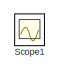
[diagram: root canvas - part 1/2, top left region]
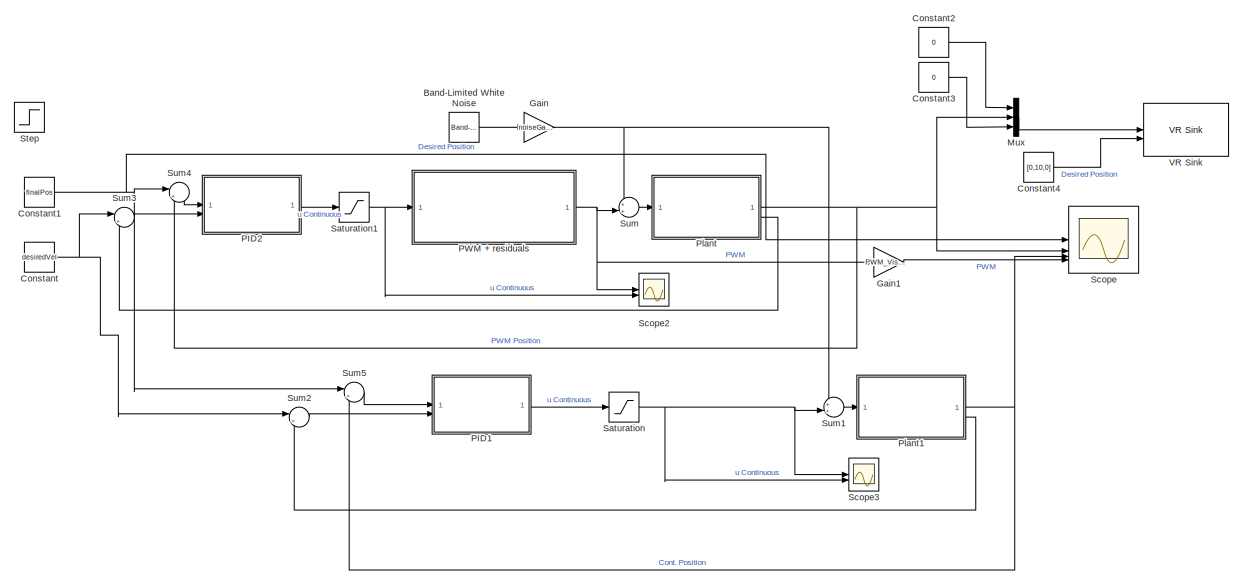
[diagram: root canvas - part 2/2, right side, full height]
MODEL slx_3f6a1cfa5770
KIND model
CONFIG AbsTol = auto
CONFIG EnableMultiTasking = off
CONFIG FixedStep = auto
CONFIG MaxStep = auto
CONFIG MinStep = auto
CONFIG RelTol = 1e-3
CONFIG SampleTimeConstraint = Unconstrained
CONFIG SolverName = VariableStepAuto
CONFIG StartTime = 0.0
CONFIG StopTime = 10
BLOCK [Reference] Band-Limited White Noise  REF=simulink/Sources/Band-Limited
White Noise
  SourceBlock = simulink/Sources/Band-Limited\nWhite Noise
  SourceType = Band-Limited White Noise.
BLOCK [Constant] Constant
  Value = desiredVel
BLOCK [Constant] Constant1
  Value = finalPos
BLOCK [Constant] Constant2
  Value = 0
BLOCK [Constant] Constant3
  Value = 0
BLOCK [Constant] Constant4
  Value = [0,10,0]
BLOCK [Gain] Gain
  Gain = noiseGain
BLOCK [Gain] Gain1
  Gain = PWM_Visualize_Gain
BLOCK [Mux] Mux
  DisplayOption = bar
  Inputs = 3
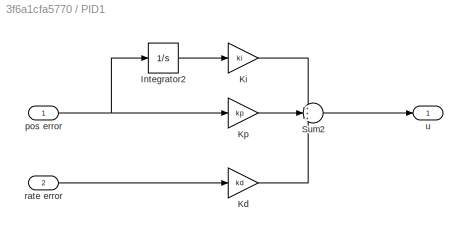
BLOCK [SubSystem] PID1
BLOCK [Integrator] PID1/Integrator2
BLOCK [Gain] PID1/Kd
  Gain = kd
BLOCK [Gain] PID1/Ki
  Gain = ki
BLOCK [Gain] PID1/Kp
  Gain = kp
BLOCK [Sum] PID1/Sum2
  Inputs = +++
BLOCK [Inport] PID1/pos error
BLOCK [Inport] PID1/rate error
  Port = 2
BLOCK [Outport] PID1/u
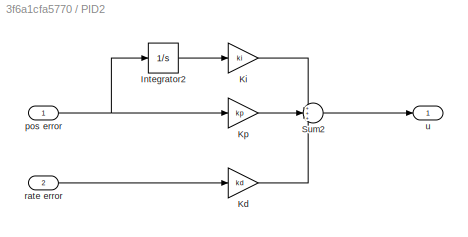
BLOCK [SubSystem] PID2
BLOCK [Integrator] PID2/Integrator2
BLOCK [Gain] PID2/Kd
  Gain = kd
BLOCK [Gain] PID2/Ki
  Gain = ki
BLOCK [Gain] PID2/Kp
  Gain = kp
BLOCK [Sum] PID2/Sum2
  Inputs = +++
BLOCK [Inport] PID2/pos error
BLOCK [Inport] PID2/rate error
  Port = 2
BLOCK [Outport] PID2/u
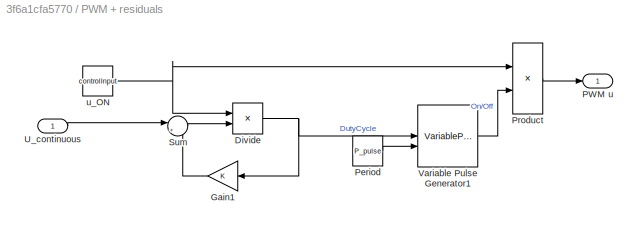
BLOCK [SubSystem] PWM + residuals
BLOCK [Product] PWM + residuals/Divide
  Inputs = /*
BLOCK [Gain] PWM + residuals/Gain1
  NameLocation = top
BLOCK [Outport] PWM + residuals/PWM u
BLOCK [Constant] PWM + residuals/Period
  Value = P_pulse
BLOCK [Product] PWM + residuals/Product
BLOCK [Sum] PWM + residuals/Sum
  Inputs = |++
BLOCK [Inport] PWM + residuals/U_continuous
BLOCK [VariablePulseGenerator] PWM + residuals/Variable Pulse Generator1
  AllowZeroPulseWidth = on
  SampleTime = 0.1
BLOCK [Constant] PWM + residuals/u_ON
  Value = controlInput
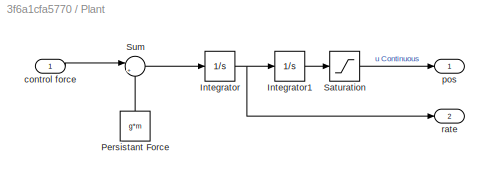
BLOCK [SubSystem] Plant
BLOCK [Integrator] Plant/Integrator
BLOCK [Integrator] Plant/Integrator1
  InitialCondition = initialPos
BLOCK [Constant] Plant/Persistant Force
  NameLocation = right
  Value = g*m
BLOCK [Saturate] Plant/Saturation
  LowerLimit = 0
  UpperLimit = 1000
BLOCK [Sum] Plant/Sum
  Inputs = |++
BLOCK [Inport] Plant/control force
BLOCK [Outport] Plant/pos
BLOCK [Outport] Plant/rate
  Port = 2
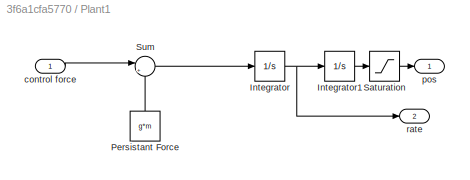
BLOCK [SubSystem] Plant1
BLOCK [Integrator] Plant1/Integrator
BLOCK [Integrator] Plant1/Integrator1
  InitialCondition = initialPos
BLOCK [Constant] Plant1/Persistant Force
  NameLocation = right
  Value = g*m
BLOCK [Saturate] Plant1/Saturation
  LowerLimit = 0
  UpperLimit = 1000
BLOCK [Sum] Plant1/Sum
  Inputs = |++
BLOCK [Inport] Plant1/control force
BLOCK [Outport] Plant1/pos
BLOCK [Outport] Plant1/rate
  Port = 2
BLOCK [Saturate] Saturation
  LowerLimit = 0
  UpperLimit = 1000
BLOCK [Saturate] Saturation1
  LowerLimit = 0
  UpperLimit = 1000
BLOCK [Scope] Scope
  Floating = off
  NumInputPorts = 4
  ScopeSpecificationString = Simulink.scopes.TimeScopeBlockCfg('CurrentConfiguration', extmgr.ConfigurationSet(extmgr.Configuration('Core','General UI',true),extmgr.Configuration('Core','Source UI',true),extmgr.Configuration('Sources','WiredSimulink',true,'DataLoggingVariableName','ScopeData1'),extmgr.Configuration('Visuals','Time Domain',true,'SerializedDisplays',{struct('MinYLimReal','-2.1322','MaxYLimReal','19.18983','YLab...<+1606ch>
BLOCK [Scope] Scope1
  Floating = off
  IOType = viewer
  NumInputPorts = 1
  ScopeSpecificationString = Simulink.scopes.TimeScopeBlockCfg('CurrentConfiguration', extmgr.ConfigurationSet(extmgr.Configuration('Core','General UI',true),extmgr.Configuration('Core','Source UI',true),extmgr.Configuration('Sources','WiredSimulink',true,'DataLoggingVariableName','ScopeData2'),extmgr.Configuration('Visuals','Time Domain',true,'SerializedDisplays',{struct('MinYLimReal','-0.57083','MaxYLimReal','4.1375','YLabe...<+1384ch>
BLOCK [Scope] Scope2
  Floating = off
  NumInputPorts = 2
  ScopeSpecificationString = Simulink.scopes.TimeScopeBlockCfg('CurrentConfiguration', extmgr.ConfigurationSet(extmgr.Configuration('Core','General UI',true),extmgr.Configuration('Core','Source UI',true),extmgr.Configuration('Sources','WiredSimulink',true),extmgr.Configuration('Visuals','Time Domain',true,'SerializedDisplays',{struct('MinYLimReal','-6.25','MaxYLimReal','56.25','YLabelReal','','MinYLimMag','0.00000','MaxYLimMa...<+3412ch>
BLOCK [Scope] Scope3
  Floating = off
  NumInputPorts = 2
  ScopeSpecificationString = Simulink.scopes.TimeScopeBlockCfg('CurrentConfiguration', extmgr.ConfigurationSet(extmgr.Configuration('Core','General UI',true),extmgr.Configuration('Core','Source UI',true),extmgr.Configuration('Sources','WiredSimulink',true,'DataLoggingVariableName','ScopeData3'),extmgr.Configuration('Visuals','Time Domain',true,'SerializedDisplays',{struct('MinYLimReal','-479.89494','MaxYLimReal','1968.56399',...<+1500ch>
BLOCK [Step] Step
  After = finalVal
  Before = initialVal
  Commented = on
  SampleTime = 0
  Time = timeStep
BLOCK [Sum] Sum
  Inputs = ++|
BLOCK [Sum] Sum1
  Inputs = ++|
BLOCK [Sum] Sum2
  Inputs = |+-
BLOCK [Sum] Sum3
  Inputs = |+-
BLOCK [Sum] Sum4
  Inputs = |+-
BLOCK [Sum] Sum5
  Inputs = |+-
BLOCK [Reference] VR Sink  REF=vrlib/VR Sink
  InstantiateOnLoad = on
  SourceBlock = vrlib/VR Sink
  SourceType = Virtual Reality Sink
LINE Band-Limited White Noise:1 -> Gain:1
NET Constant1:1 -> Scope:1, Sum4:1, Sum5:1
LINE Constant2:1 -> Mux:1
LINE Constant3:1 -> Mux:3
LINE Constant4:1 -> VR Sink:2
NET Constant:1 -> Sum2:1, Sum3:1
LINE Gain1:1 -> Scope:4
NET Gain:1 -> Sum1:1, Sum:1
LINE Mux:1 -> VR Sink:1
LINE PID1/Integrator2:1 -> PID1/Ki:1
LINE PID1/Kd:1 -> PID1/Sum2:3
LINE PID1/Ki:1 -> PID1/Sum2:1
LINE PID1/Kp:1 -> PID1/Sum2:2
LINE PID1/Sum2:1 -> PID1/u:1
NET PID1/pos error:1 -> PID1/Integrator2:1, PID1/Kp:1
LINE PID1/rate error:1 -> PID1/Kd:1
LINE PID1:1 -> Saturation:1
LINE PID2/Integrator2:1 -> PID2/Ki:1
LINE PID2/Kd:1 -> PID2/Sum2:3
LINE PID2/Ki:1 -> PID2/Sum2:1
LINE PID2/Kp:1 -> PID2/Sum2:2
LINE PID2/Sum2:1 -> PID2/u:1
NET PID2/pos error:1 -> PID2/Integrator2:1, PID2/Kp:1
LINE PID2/rate error:1 -> PID2/Kd:1
LINE PID2:1 -> Saturation1:1
NET PWM + residuals/Divide:1 -> PWM + residuals/Gain1:1, PWM + residuals/Variable Pulse Generator1:1
LINE PWM + residuals/Gain1:1 -> PWM + residuals/Sum:2
LINE PWM + residuals/Period:1 -> PWM + residuals/Variable Pulse Generator1:2
LINE PWM + residuals/Product:1 -> PWM + residuals/PWM u:1
LINE PWM + residuals/Sum:1 -> PWM + residuals/Divide:2
LINE PWM + residuals/U_continuous:1 -> PWM + residuals/Sum:1
LINE PWM + residuals/Variable Pulse Generator1:1 -> PWM + residuals/Product:2
NET PWM + residuals/u_ON:1 -> PWM + residuals/Divide:1, PWM + residuals/Product:1
NET PWM + residuals:1 -> Gain1:1, Scope2:1, Sum:2
LINE Plant/Integrator1:1 -> Plant/Saturation:1
NET Plant/Integrator:1 -> Plant/Integrator1:1, Plant/rate:1
LINE Plant/Persistant Force:1 -> Plant/Sum:2
LINE Plant/Saturation:1 -> Plant/pos:1
LINE Plant/Sum:1 -> Plant/Integrator:1
LINE Plant/control force:1 -> Plant/Sum:1
LINE Plant1/Integrator1:1 -> Plant1/Saturation:1
NET Plant1/Integrator:1 -> Plant1/Integrator1:1, Plant1/rate:1
LINE Plant1/Persistant Force:1 -> Plant1/Sum:2
LINE Plant1/Saturation:1 -> Plant1/pos:1
LINE Plant1/Sum:1 -> Plant1/Integrator:1
LINE Plant1/control force:1 -> Plant1/Sum:1
NET Plant1:1 -> Scope:3, Sum5:2
LINE Plant1:2 -> Sum2:2
NET Plant:1 -> Mux:2, Scope:2, Sum4:2
LINE Plant:2 -> Sum3:2
NET Saturation1:1 -> PWM + residuals:1, Scope2:2
NET Saturation:1 -> Scope3:1, Scope3:2, Sum1:2
LINE Sum1:1 -> Plant1:1
LINE Sum2:1 -> PID1:2
LINE Sum3:1 -> PID2:2
LINE Sum4:1 -> PID2:1
LINE Sum5:1 -> PID1:1
LINE Sum:1 -> Plant:1
note: NET lines group one-source signal fan-out (src -> all destinations, sorted); 1:1 wires keep LINE
